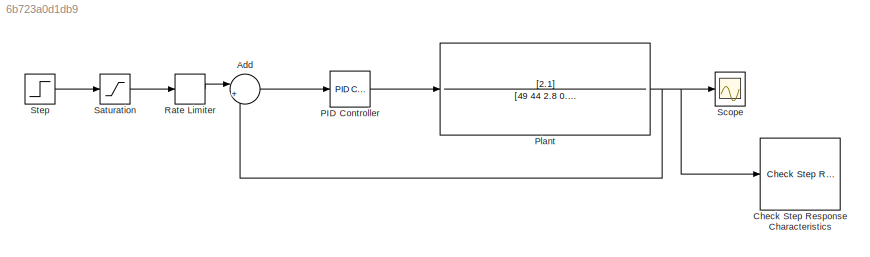
MODEL slx_6b723a0d1db9
KIND model
CONFIG AbsTol = auto
CONFIG EnableMultiTasking = off
CONFIG FixedStep = 0.01
CONFIG MaxStep = auto
CONFIG MinStep = auto
CONFIG RelTol = 1e-3
CONFIG SampleTimeConstraint = Unconstrained
CONFIG SolverName = FixedStepAuto
CONFIG StartTime = 0.0
CONFIG StopTime = 100
WORKSPACE source: mxarray member
WORKSPACE Kd = 11.2358411832
WORKSPACE Ki = 0.257144197246
WORKSPACE Kp = 0.507737893263
WORKSPACE design_optimization_sdosession: sldodialogs.data.SessionData (value not decoded)
BLOCK [Sum] Add
  Inputs = |+-
BLOCK [Reference] Check Step Response Characteristics  REF=checkpacklib/Check Step Response 
Characteristics
  InstantiateOnLoad = on
  LibrarySourceBlock = sdolib/Model Verification/Check Step Response \nCharacteristics
  SourceBlock = checkpacklib/Check Step Response \nCharacteristics
  SourceType = Checks_StepResponse
BLOCK [Reference] PID Controller  REF=slpidlib/PID Controller
  LibrarySourceBlock = simulink/Continuous/PID Controller
  SourceBlock = slpidlib/PID Controller
  SourceType = PID 1dof
BLOCK [TransferFcn] Plant
  Denominator = [49 44 2.8 0.9]
  Numerator = [2.1]
BLOCK [RateLimiter] Rate Limiter
  FallingSlewLimit = -0.8
  RisingSlewLimit = 0.8
  SampleTimeMode = inherited
BLOCK [Saturate] Saturation
  LowerLimit = -2
  UpperLimit = 2
BLOCK [Scope] Scope
  Floating = off
  NumInputPorts = 1
  ScopeSpecificationString = Simulink.scopes.TimeScopeBlockCfg('CurrentConfiguration', extmgr.ConfigurationSet(extmgr.Configuration('Core','General UI',true),extmgr.Configuration('Core','Source UI',true),extmgr.Configuration('Sources','WiredSimulink',true),extmgr.Configuration('Visuals','Time Domain',true,'SerializedDisplays',{struct('MinYLimReal','-0.1375','MaxYLimReal','1.23748','YLabelReal','','MinYLimMag','0.00000','MaxYL...<+2090ch>
BLOCK [Step] Step
  SampleTime = 0
  Time = 0
LINE Add:1 -> PID Controller:1
LINE PID Controller:1 -> Plant:1
NET Plant:1 -> Add:2, Check Step Response Characteristics:1, Scope:1
LINE Rate Limiter:1 -> Add:1
LINE Saturation:1 -> Rate Limiter:1
LINE Step:1 -> Saturation:1
note: NET lines group one-source signal fan-out (src -> all destinations, sorted); 1:1 wires keep LINE
